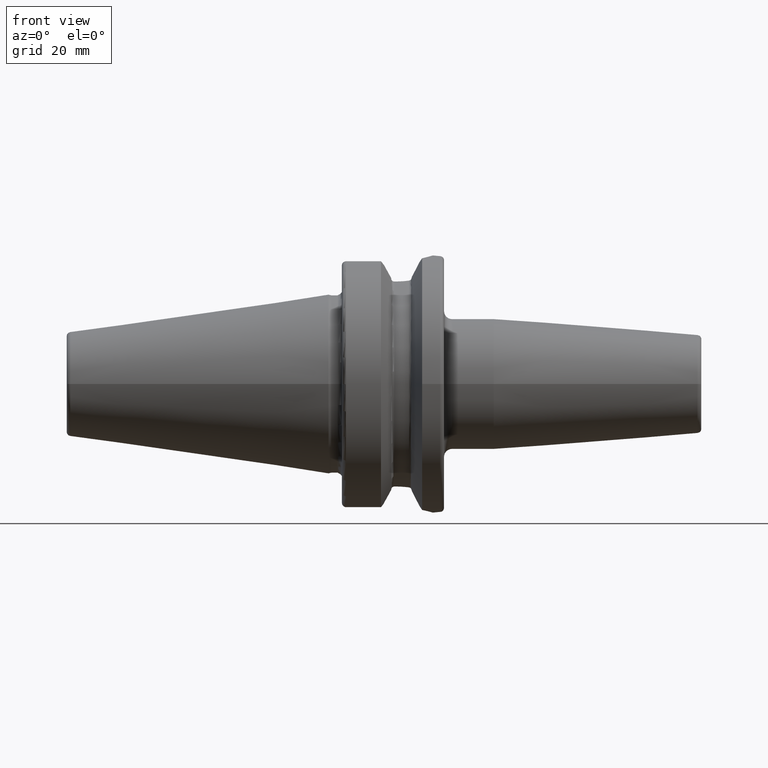
[diagram: clean part render]
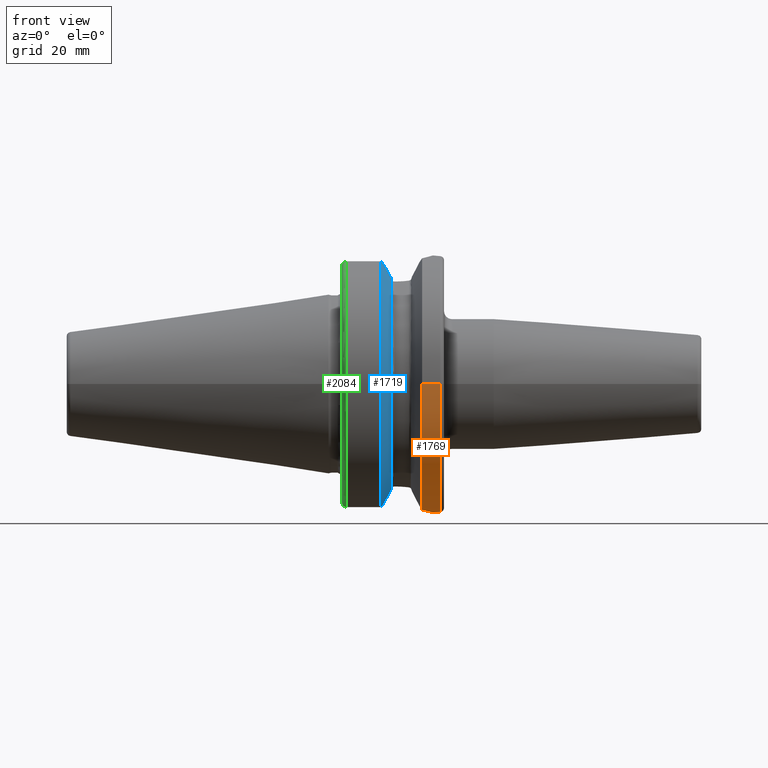
[diagram: same view with three faces highlighted in distinct colors, each labeled with its STEP entity id]
A machine part, front view with three faces highlighted in distinct colors.
Their STEP definitions:

[orange] entity #1769 — the highlighted cylindrical surface (partial cylindrical patch) has radius 31.4875 mm, axis along (1, 0, 0).
#246=CARTESIAN_POINT('',(2.162727746897E1,0.E0,0.E0));
#247=DIRECTION('',(1.E0,0.E0,0.E0));
#248=DIRECTION('',(0.E0,-1.E0,0.E0));
#249=AXIS2_PLACEMENT_3D('',#246,#247,#248);
#251=DIRECTION('',(-1.E0,0.E0,0.E0));
#252=VECTOR('',#251,4.372722531031E0);
#253=CARTESIAN_POINT('',(2.6E1,-3.14875E1,0.E0));
#254=LINE('',#253,#252);
#255=CARTESIAN_POINT('',(2.6E1,0.E0,0.E0));
#256=DIRECTION('',(-1.E0,0.E0,0.E0));
#257=DIRECTION('',(0.E0,1.E0,0.E0));
#258=AXIS2_PLACEMENT_3D('',#255,#256,#257);
#260=DIRECTION('',(-1.E0,0.E0,0.E0));
#261=VECTOR('',#260,4.372722531031E0);
#262=CARTESIAN_POINT('',(2.6E1,3.14875E1,0.E0));
#263=LINE('',#262,#261);
#264=CARTESIAN_POINT('',(2.162727746897E1,0.E0,0.E0));
#265=DIRECTION('',(1.E0,0.E0,0.E0));
#266=DIRECTION('',(0.E0,2.025221356988E-1,-9.792776851088E-1));
#267=AXIS2_PLACEMENT_3D('',#264,#265,#266);
#269=CARTESIAN_POINT('',(2.162727746897E1,-6.376922817779E0,-3.083500464774E1));
#270=CARTESIAN_POINT('',(2.179639421098E1,-6.206831610819E0,-3.087018371088E1));
#271=CARTESIAN_POINT('',(2.232364867117E1,-5.632321227298E0,-3.098422972396E1));
#272=CARTESIAN_POINT('',(2.308132499159E1,-4.553413356838E0,-3.116719517710E1));
#273=CARTESIAN_POINT('',(2.375642364916E1,-3.096696697708E0,-3.134706212903E1));
#274=CARTESIAN_POINT('',(2.416388565718E1,-1.551520318298E0,-3.146240625515E1));
#275=CARTESIAN_POINT('',(2.429615986887E1,3.673173569156E-2,-3.150094402831E1));
#276=CARTESIAN_POINT('',(2.415103100304E1,1.624802494737E0,-3.145868929477E1));
#277=CARTESIAN_POINT('',(2.373074835246E1,3.167093598881E0,-3.133996423654E1));
#278=CARTESIAN_POINT('',(2.304347310477E1,4.618481554386E0,-3.115752883213E1));
#279=CARTESIAN_POINT('',(2.229119413287E1,5.670903386055E0,-3.097688944820E1));
#280=CARTESIAN_POINT('',(2.177863162319E1,6.224695230405E0,-3.086648974378E1));
#281=CARTESIAN_POINT('',(2.162727746897E1,6.376915747817E0,-3.083500610986E1));
#1226=CARTESIAN_POINT('',(2.162727746897E1,3.14875E1,0.E0));
#1228=VERTEX_POINT('',#1226);
#1230=CARTESIAN_POINT('',(2.162727746897E1,-3.14875E1,0.E0));
#1231=CARTESIAN_POINT('',(2.162727746897E1,-6.376922817779E0,
-3.083500464774E1));
#1232=VERTEX_POINT('',#1230);
#1233=VERTEX_POINT('',#1231);
#1234=CARTESIAN_POINT('',(2.6E1,3.14875E1,0.E0));
#1235=VERTEX_POINT('',#1234);
#1236=CARTESIAN_POINT('',(2.6E1,-3.14875E1,0.E0));
#1237=VERTEX_POINT('',#1236);
#1240=CARTESIAN_POINT('',(2.162727746897E1,6.376915747817E0,-3.083500610986E1));
#1241=VERTEX_POINT('',#1240);
#1750=CARTESIAN_POINT('',(-7.002E1,0.E0,0.E0));
#1751=DIRECTION('',(1.E0,0.E0,0.E0));
#1752=DIRECTION('',(0.E0,-1.E0,0.E0));
#1753=AXIS2_PLACEMENT_3D('',#1750,#1751,#1752);
#1754=CYLINDRICAL_SURFACE('',#1753,3.14875E1);
#1756=ORIENTED_EDGE('',*,*,#1755,.F.);
#1758=ORIENTED_EDGE('',*,*,#1757,.F.);
#1760=ORIENTED_EDGE('',*,*,#1759,.F.);
#1762=ORIENTED_EDGE('',*,*,#1761,.T.);
#1764=ORIENTED_EDGE('',*,*,#1763,.F.);
#1766=ORIENTED_EDGE('',*,*,#1765,.F.);
#1767=EDGE_LOOP('',(#1756,#1758,#1760,#1762,#1764,#1766));
#1768=FACE_OUTER_BOUND('',#1767,.F.);
#1769=ADVANCED_FACE('',(#1768),#1754,.T.);
#250=CIRCLE('',#249,3.14875E1);
#259=CIRCLE('',#258,3.14875E1);
#268=CIRCLE('',#267,3.14875E1);
#282=B_SPLINE_CURVE_WITH_KNOTS('',3,(#269,#270,#271,#272,#273,#274,#275,#276,
#277,#278,#279,#280,#281),.UNSPECIFIED.,.F.,.F.,(4,1,1,1,1,1,1,1,1,1,4),(0.E0,
5.022508536415E-2,1.633285299657E-1,2.764319745673E-1,3.895354191688E-1,
5.026388637704E-1,6.157423083720E-1,7.288457529735E-1,8.419491975751E-1,
9.550526421767E-1,1.E0),.UNSPECIFIED.);
#1755=EDGE_CURVE('',#1232,#1233,#250,.T.);
#1757=EDGE_CURVE('',#1237,#1232,#254,.T.);
#1759=EDGE_CURVE('',#1235,#1237,#259,.T.);
#1761=EDGE_CURVE('',#1235,#1228,#263,.T.);
#1763=EDGE_CURVE('',#1241,#1228,#268,.T.);
#1765=EDGE_CURVE('',#1233,#1241,#282,.T.);

[blue] entity #1719 — the highlighted conical surface has half-angle 60 deg.
#205=CARTESIAN_POINT('',(1.40625E1,0.E0,0.E0));
#206=DIRECTION('',(1.E0,0.E0,0.E0));
#207=DIRECTION('',(0.E0,-2.978832194960E-1,9.546023190537E-1));
#208=AXIS2_PLACEMENT_3D('',#205,#206,#207);
#210=CARTESIAN_POINT('',(1.157272253103E1,0.E0,0.E0));
#211=DIRECTION('',(1.E0,0.E0,0.E0));
#212=DIRECTION('',(0.E0,-2.983189831898E-1,9.544662300305E-1));
#213=AXIS2_PLACEMENT_3D('',#210,#211,#212);
#283=CARTESIAN_POINT('',(1.157272253103E1,-9.052779463114E0,-3.015808084481E1));
#284=CARTESIAN_POINT('',(1.166664976709E1,-8.890092718051E0,-3.003705750519E1));
#285=CARTESIAN_POINT('',(1.185193462301E1,-8.567774254092E0,-2.979728347248E1));
#286=CARTESIAN_POINT('',(1.203209445084E1,-8.251571174555E0,-2.956205869943E1));
#287=CARTESIAN_POINT('',(1.212089730171E1,-8.095E0,-2.944558475789E1));
#331=CARTESIAN_POINT('',(1.40625E1,-8.095E0,-2.594139336151E1));
#332=CARTESIAN_POINT('',(1.385657504808E1,-8.095E0,-2.631502798627E1));
#333=CARTESIAN_POINT('',(1.343816757814E1,-8.095E0,-2.707276272189E1));
#334=CARTESIAN_POINT('',(1.279109429984E1,-8.095E0,-2.824052697941E1));
#335=CARTESIAN_POINT('',(1.234647911565E1,-8.095E0,-2.904036968182E1));
#336=CARTESIAN_POINT('',(1.212089730171E1,-8.095E0,-2.944558475789E1));
#536=CARTESIAN_POINT('',(1.231359829731E1,-8.095E0,2.909928918805E1));
#537=CARTESIAN_POINT('',(1.251575951516E1,-8.095E0,2.873583944049E1));
#538=CARTESIAN_POINT('',(1.291487013940E1,-8.095E0,2.801733166678E1));
#539=CARTESIAN_POINT('',(1.349777805891E1,-8.095E0,2.696486188593E1));
#540=CARTESIAN_POINT('',(1.387600348310E1,-8.095E0,2.627977661939E1));
#541=CARTESIAN_POINT('',(1.40625E1,-8.095E0,2.594139336151E1));
#566=CARTESIAN_POINT('',(1.231359829731E1,-8.095E0,2.909928918805E1));
#567=CARTESIAN_POINT('',(1.219482394511E1,-8.305723816550E0,2.925420394272E1));
#568=CARTESIAN_POINT('',(1.195258450384E1,-8.732839300267E0,2.956820020312E1));
#569=CARTESIAN_POINT('',(1.170091988157E1,-9.171274658654E0,2.989051833068E1));
#570=CARTESIAN_POINT('',(1.157272253103E1,-9.393318983190E0,3.005375541808E1));
#1222=CARTESIAN_POINT('',(1.40625E1,-8.095E0,2.594139336151E1));
#1223=CARTESIAN_POINT('',(1.40625E1,-8.095E0,-2.594139336151E1));
#1224=VERTEX_POINT('',#1222);
#1225=VERTEX_POINT('',#1223);
#1329=VERTEX_POINT('',#536);
#1337=VERTEX_POINT('',#336);
#1340=CARTESIAN_POINT('',(1.157272253103E1,-9.393318983190E0,3.005375541808E1));
#1341=CARTESIAN_POINT('',(1.157272253103E1,-9.052779463114E0,
-3.015808084481E1));
#1342=VERTEX_POINT('',#1340);
#1343=VERTEX_POINT('',#1341);
#1701=CARTESIAN_POINT('',(1.281761126552E1,0.E0,0.E0));
#1702=DIRECTION('',(-1.E0,0.E0,0.E0));
#1703=DIRECTION('',(0.E0,1.E0,0.E0));
#1704=AXIS2_PLACEMENT_3D('',#1701,#1702,#1703);
#1705=CONICAL_SURFACE('',#1704,2.933128946210E1,6.E1);
#1706=ORIENTED_EDGE('',*,*,#1672,.T.);
#1708=ORIENTED_EDGE('',*,*,#1707,.T.);
#1710=ORIENTED_EDGE('',*,*,#1709,.F.);
#1712=ORIENTED_EDGE('',*,*,#1711,.F.);
#1714=ORIENTED_EDGE('',*,*,#1713,.F.);
#1716=ORIENTED_EDGE('',*,*,#1715,.T.);
#1717=EDGE_LOOP('',(#1706,#1708,#1710,#1712,#1714,#1716));
#1718=FACE_OUTER_BOUND('',#1717,.F.);
#1719=ADVANCED_FACE('',(#1718),#1705,.T.);
#209=CIRCLE('',#208,2.717507892421E1);
#214=CIRCLE('',#213,3.14875E1);
#288=B_SPLINE_CURVE_WITH_KNOTS('',3,(#283,#284,#285,#286,#287),.UNSPECIFIED.,
.F.,.F.,(4,1,4),(0.E0,5.E-1,1.E0),.UNSPECIFIED.);
#337=B_SPLINE_CURVE_WITH_KNOTS('',3,(#331,#332,#333,#334,#335,#336),
.UNSPECIFIED.,.F.,.F.,(4,1,1,4),(0.E0,3.333333333333E-1,6.666666666667E-1,1.E0),
.UNSPECIFIED.);
#542=B_SPLINE_CURVE_WITH_KNOTS('',3,(#536,#537,#538,#539,#540,#541),
.UNSPECIFIED.,.F.,.F.,(4,1,1,4),(0.E0,3.333333333333E-1,6.666666666667E-1,1.E0),
.UNSPECIFIED.);
#571=B_SPLINE_CURVE_WITH_KNOTS('',3,(#566,#567,#568,#569,#570),.UNSPECIFIED.,
.F.,.F.,(4,1,4),(0.E0,5.E-1,1.E0),.UNSPECIFIED.);
#1672=EDGE_CURVE('',#1224,#1225,#209,.T.);
#1707=EDGE_CURVE('',#1225,#1337,#337,.T.);
#1709=EDGE_CURVE('',#1343,#1337,#288,.T.);
#1711=EDGE_CURVE('',#1342,#1343,#214,.T.);
#1713=EDGE_CURVE('',#1329,#1342,#571,.T.);
#1715=EDGE_CURVE('',#1329,#1224,#542,.T.);

[green] entity #2084 — the highlighted toroidal blend (fillet) surface has major radius 30.4875 mm and minor (blend) radius 1 mm.
#219=CARTESIAN_POINT('',(3.E0,0.E0,0.E0));
#220=DIRECTION('',(-1.E0,0.E0,0.E0));
#221=DIRECTION('',(0.E0,-2.875039130802E-1,-9.577794631143E-1));
#222=AXIS2_PLACEMENT_3D('',#219,#220,#221);
#597=CARTESIAN_POINT('',(1.999985784732E0,-9.094985783206E0,-2.909928820385E1));
#598=CARTESIAN_POINT('',(1.999985784732E0,-9.095112793048E0,-2.917217137670E1));
#599=CARTESIAN_POINT('',(2.014374036950E0,-9.093739351075E0,-2.932192619110E1));
#600=CARTESIAN_POINT('',(2.087184923784E0,-9.087603638745E0,-2.955183251506E1));
#601=CARTESIAN_POINT('',(2.211396248706E0,-9.078496481978E0,-2.976350519345E1));
#602=CARTESIAN_POINT('',(2.379122961844E0,-9.068290399113E0,-2.993980731602E1));
#603=CARTESIAN_POINT('',(2.577680867074E0,-9.059670739939E0,-3.006831316068E1));
#604=CARTESIAN_POINT('',(2.790930333101E0,-9.053893030365E0,-3.014309601841E1));
#605=CARTESIAN_POINT('',(2.931534903981E0,-9.052812497807E0,-3.015807412629E1));
#606=CARTESIAN_POINT('',(2.999999997734E0,-9.052776400559E0,-3.015808496187E1));
#608=CARTESIAN_POINT('',(2.E0,0.E0,0.E0));
#609=DIRECTION('',(-1.E0,0.E0,0.E0));
#610=DIRECTION('',(0.E0,-2.983190208830E-1,-9.544662182495E-1));
#611=AXIS2_PLACEMENT_3D('',#608,#609,#610);
#613=CARTESIAN_POINT('',(3.E0,-9.095027762304E0,2.909928051092E1));
#614=DIRECTION('',(0.E0,-9.544659454175E-1,-2.983198938025E-1));
#615=DIRECTION('',(0.E0,-2.983198938025E-1,9.544659454175E-1));
#616=AXIS2_PLACEMENT_3D('',#613,#614,#615);
#1352=CARTESIAN_POINT('',(1.999970325294E0,-9.094970317901E0,2.909929639904E1));
#1354=VERTEX_POINT('',#1352);
#1356=CARTESIAN_POINT('',(3.E0,-9.393347656107E0,3.005374645633E1));
#1357=VERTEX_POINT('',#1356);
#1377=VERTEX_POINT('',#597);
#1378=VERTEX_POINT('',#606);
#2072=CARTESIAN_POINT('',(3.E0,0.E0,0.E0));
#2073=DIRECTION('',(1.E0,0.E0,0.E0));
#2074=DIRECTION('',(0.E0,-1.E0,0.E0));
#2075=AXIS2_PLACEMENT_3D('',#2072,#2073,#2074);
#2076=TOROIDAL_SURFACE('',#2075,3.04875E1,1.E0);
#2078=ORIENTED_EDGE('',*,*,#2077,.F.);
#2079=ORIENTED_EDGE('',*,*,#1607,.T.);
#2080=ORIENTED_EDGE('',*,*,#2050,.F.);
#2081=ORIENTED_EDGE('',*,*,#1728,.F.);
#2082=EDGE_LOOP('',(#2078,#2079,#2080,#2081));
#2083=FACE_OUTER_BOUND('',#2082,.F.);
#2084=ADVANCED_FACE('',(#2083),#2076,.T.);
#223=CIRCLE('',#222,3.14875E1);
#607=B_SPLINE_CURVE_WITH_KNOTS('',3,(#597,#598,#599,#600,#601,#602,#603,#604,
#605,#606),.UNSPECIFIED.,.F.,.F.,(4,1,1,1,1,1,1,4),(0.E0,1.428571428571E-1,
2.857142857143E-1,4.285714285714E-1,5.714285714286E-1,7.142857142857E-1,
8.571428571429E-1,1.E0),.UNSPECIFIED.);
#612=CIRCLE('',#611,3.04875E1);
#617=CIRCLE('',#616,1.E0);
#1607=EDGE_CURVE('',#1377,#1354,#612,.T.);
#1728=EDGE_CURVE('',#1378,#1357,#223,.T.);
#2050=EDGE_CURVE('',#1357,#1354,#617,.T.);
#2077=EDGE_CURVE('',#1377,#1378,#607,.T.);